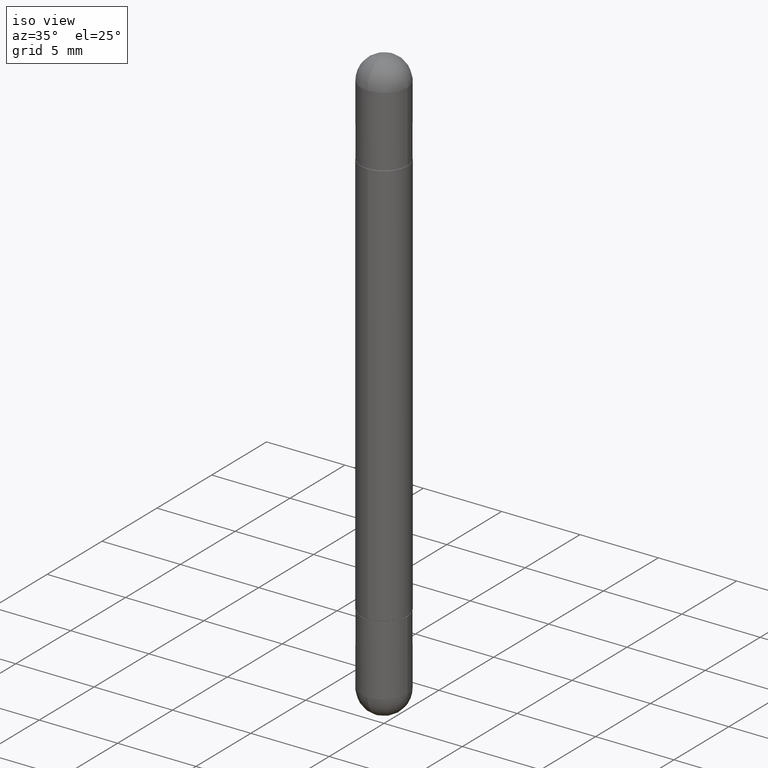
[diagram: clean part render]
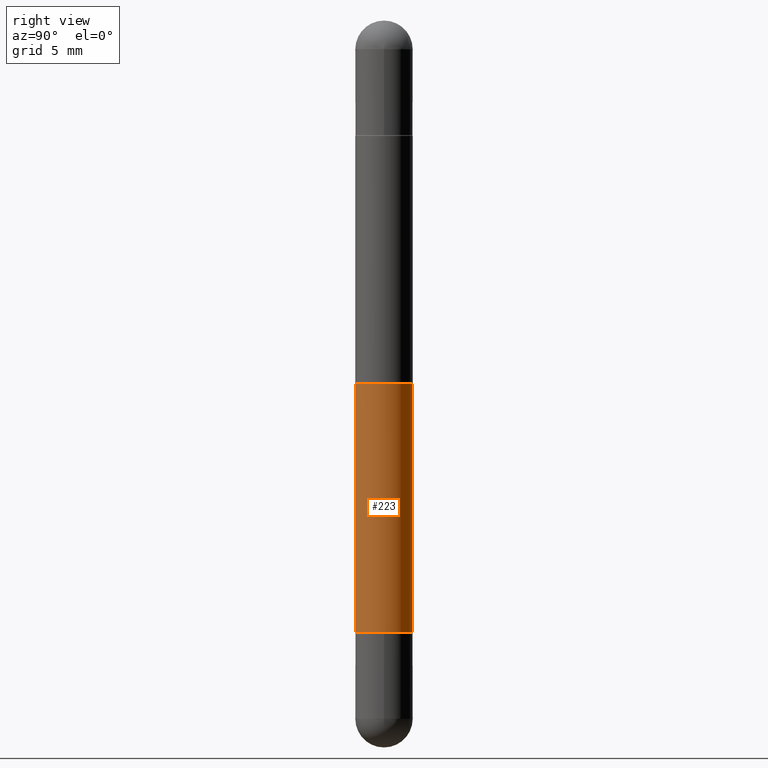
[diagram: tour spotlight — one face highlighted and labeled with its STEP entity id]
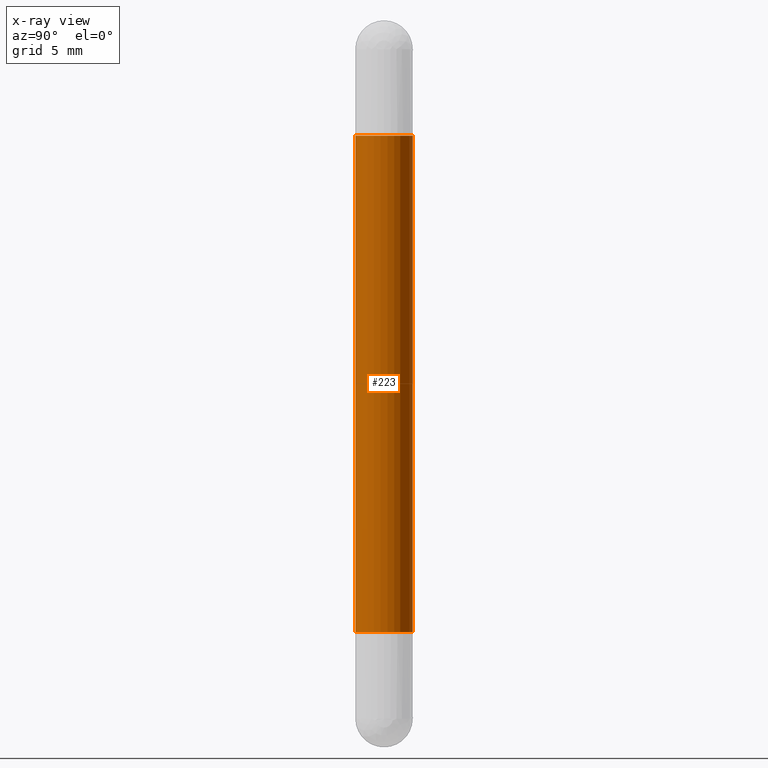
[diagram: x-ray of the same camera — body ghosted, this tour face saturated]
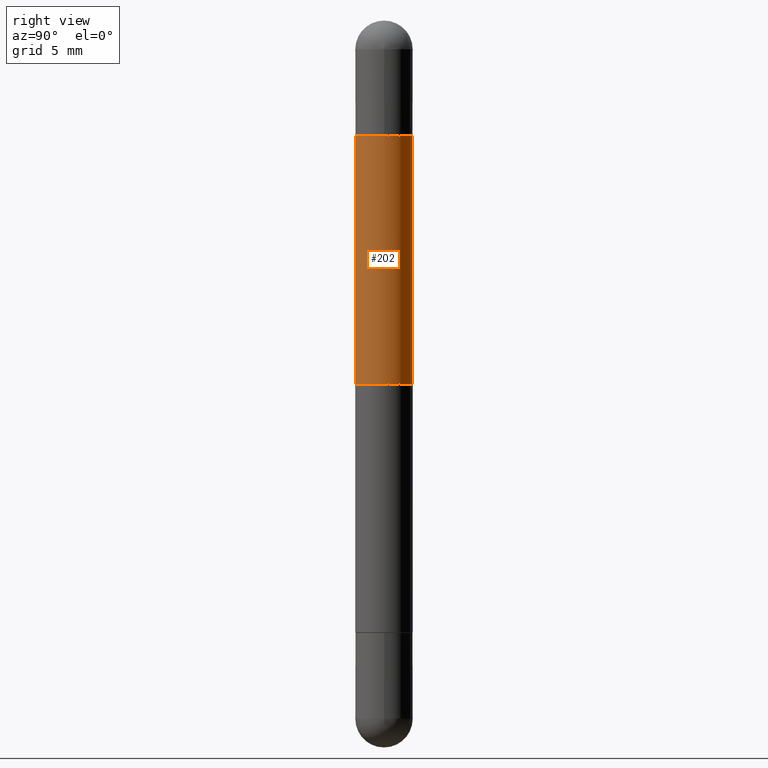
[diagram: tour spotlight — one face highlighted and labeled with its STEP entity id]
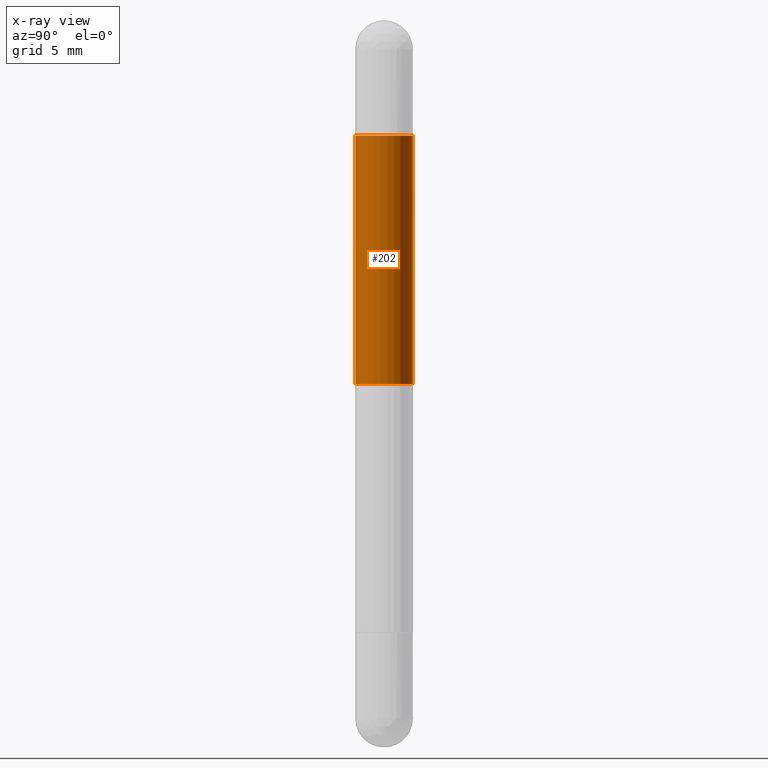
[diagram: x-ray of the same camera — body ghosted, this tour face saturated]
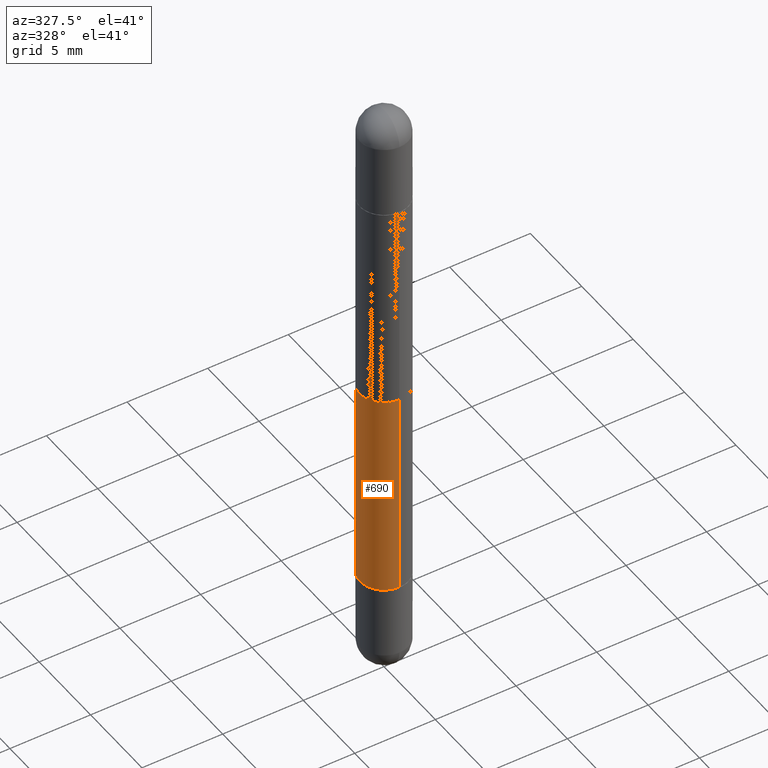
[diagram: tour spotlight — one face highlighted and labeled with its STEP entity id]
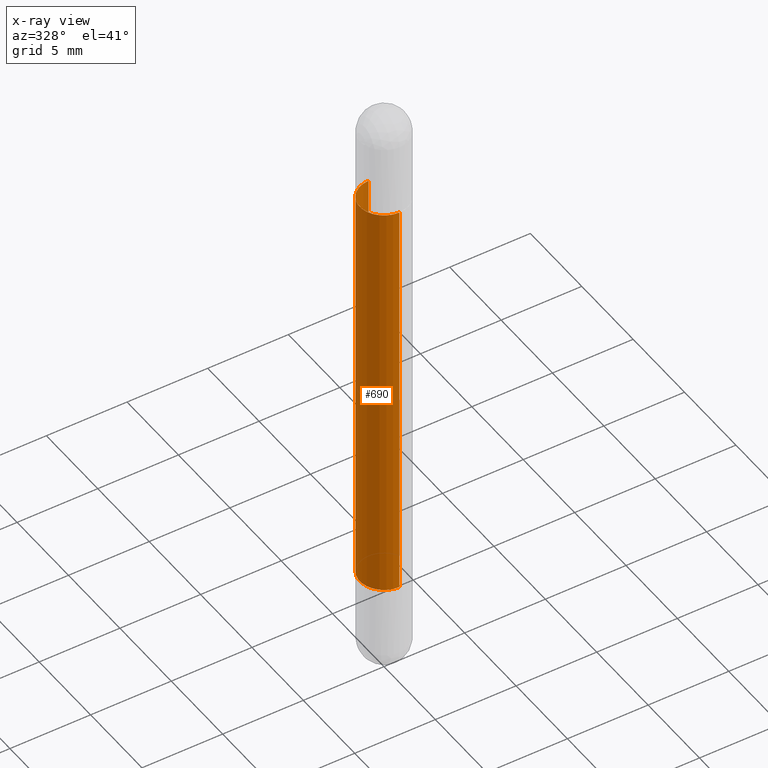
[diagram: x-ray of the same camera — body ghosted, this tour face saturated]
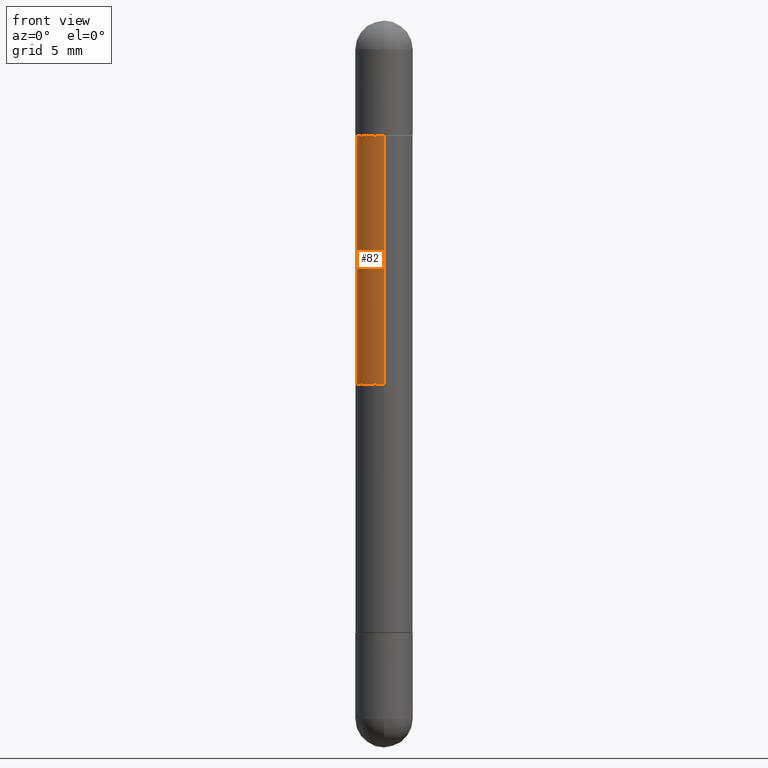
[diagram: tour spotlight — one face highlighted and labeled with its STEP entity id]
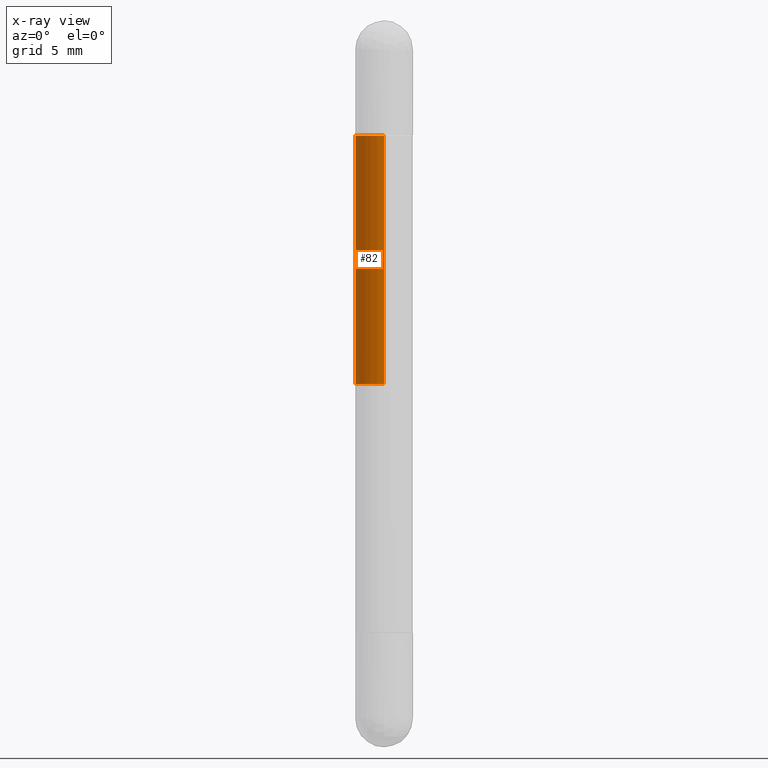
[diagram: x-ray of the same camera — body ghosted, this tour face saturated]
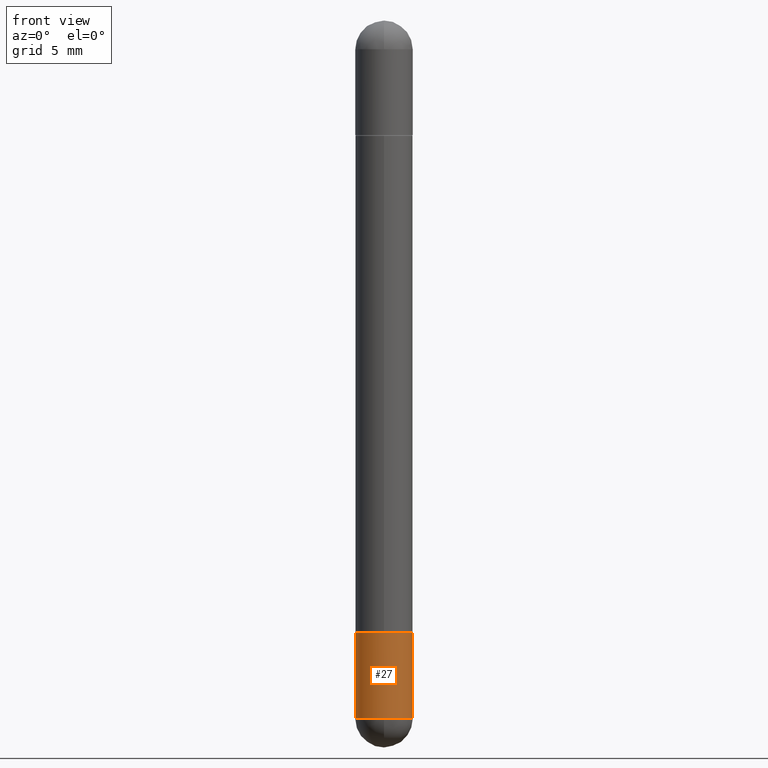
[diagram: tour spotlight — one face highlighted and labeled with its STEP entity id]
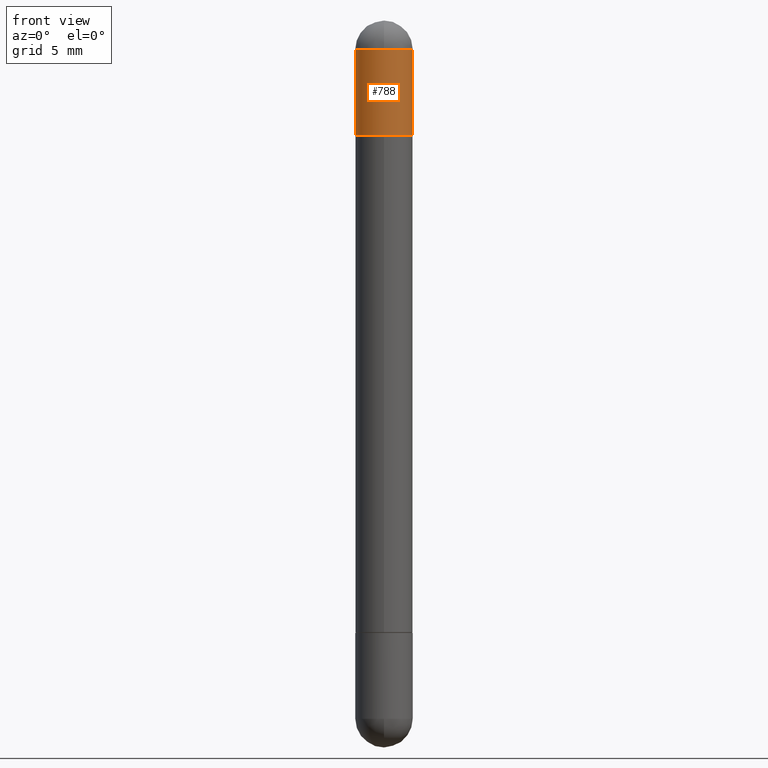
[diagram: tour spotlight — one face highlighted and labeled with its STEP entity id]
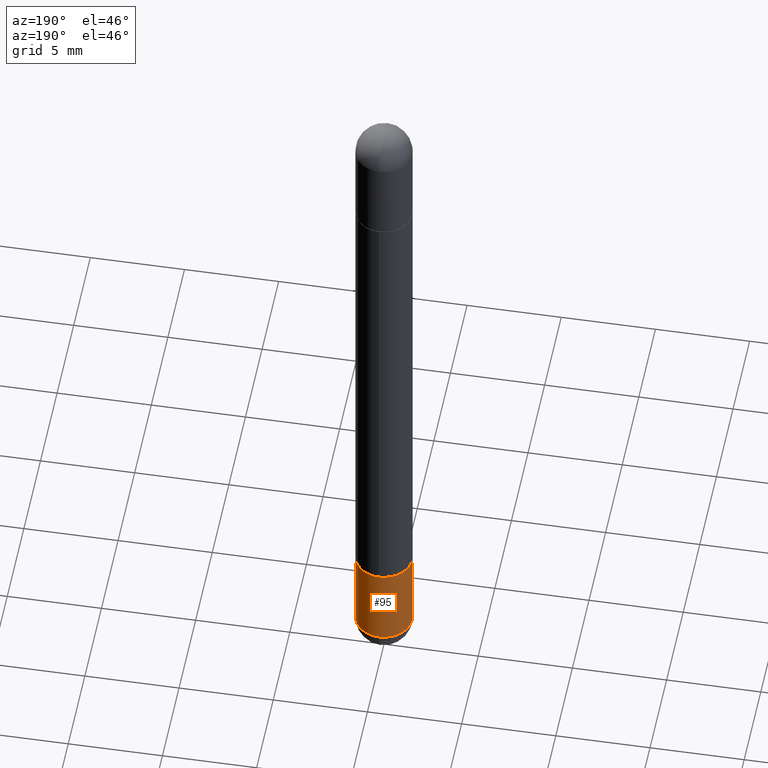
[diagram: tour spotlight — one face highlighted and labeled with its STEP entity id]
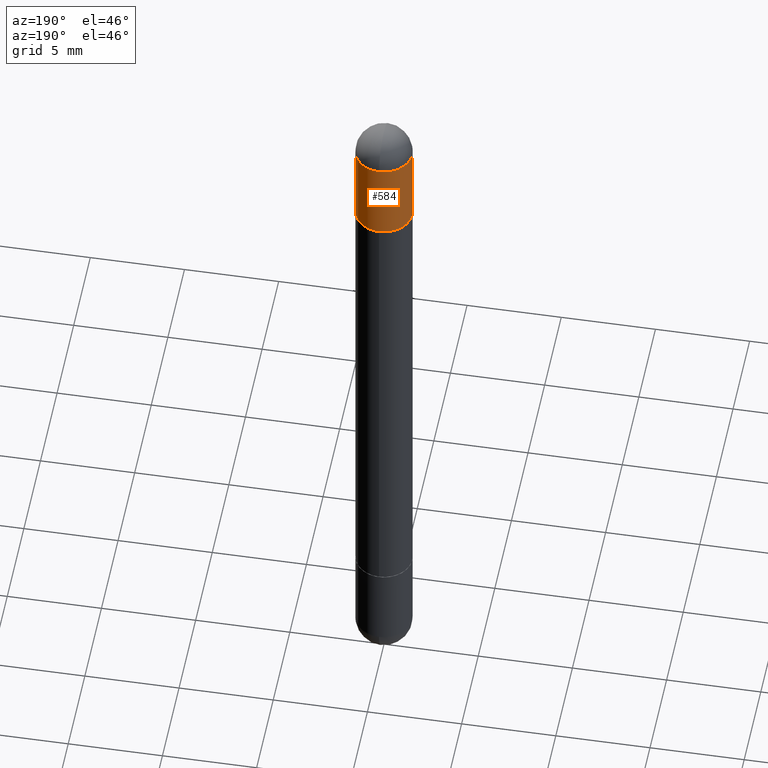
[diagram: tour spotlight — one face highlighted and labeled with its STEP entity id]
A machine part: a face-by-face anatomy tour. The part has 29 B-rep faces; the first image is the clean iso view, then the 8 largest visible faces are spotlighted one at a time (largest first), each with its STEP entity span.

Face 1 — right view, entity #223. An x-ray twin of the same camera follows (body ghosted, this face saturated) — the face is partly hidden behind the body. In plain terms, the highlighted cylindrical surface (edge-blend (fillet) strip) has radius 1.4999 mm, axis along (-0, 0, -1).
Definition (entity closure, byte-faithful):
#17 = CARTESIAN_POINT ( 'NONE',  ( 3.088015164772485743E-29, -4.381943779588710480E-15, -1.258900000000000130 ) ) ;
#22 = CARTESIAN_POINT ( 'NONE',  ( 4.051124067684094106E-16, 0.05905000000000007465, -1.496099999999999985 ) ) ;
#26 = CYLINDRICAL_SURFACE ( 'NONE', #769, 0.05905000000000007465 ) ;
#50 = VERTEX_POINT ( 'NONE', #796 ) ;
#84 = VECTOR ( 'NONE', #383, 39.37007874015748143 ) ;
#89 = DIRECTION ( 'NONE',  ( -2.452947148123349933E-29, 3.480771927546834282E-15, -1.000000000000000000 ) ) ;
#99 = ORIENTED_EDGE ( 'NONE', *, *, #364, .F. ) ;
#121 = ORIENTED_EDGE ( 'NONE', *, *, #171, .T. ) ;
#132 = AXIS2_PLACEMENT_3D ( 'NONE', #269, #375, #441 ) ;
#161 = VERTEX_POINT ( 'NONE', #701 ) ;
#171 = EDGE_CURVE ( 'NONE', #50, #746, #349, .T. ) ;
#210 = CARTESIAN_POINT ( 'NONE',  ( -4.123439461173745257E-16, -0.05905000000000007465, -1.496100000000000430 ) ) ;
#223 = ADVANCED_FACE ( 'NONE', ( #717 ), #26, .T. ) ;
#225 = CARTESIAN_POINT ( 'NONE',  ( 0.000000000000000000, 0.000000000000000000, -1.496100000000000207 ) ) ;
#269 = CARTESIAN_POINT ( 'NONE',  ( 3.088015164772485743E-29, -4.381943779588710480E-15, -0.2372000000000001330 ) ) ;
#298 = EDGE_CURVE ( 'NONE', #161, #50, #622, .T. ) ;
#349 = CIRCLE ( 'NONE', #812, 0.05905000000000013710 ) ;
#362 = EDGE_LOOP ( 'NONE', ( #480, #99, #373, #121 ) ) ;
#364 = EDGE_CURVE ( 'NONE', #161, #535, #620, .T. ) ;
#373 = ORIENTED_EDGE ( 'NONE', *, *, #298, .T. ) ;
#375 = DIRECTION ( 'NONE',  ( 2.452947148123349933E-29, -3.480771927546834282E-15, 1.000000000000000000 ) ) ;
#383 = DIRECTION ( 'NONE',  ( -2.452947148123350213E-29, 3.480771927546833888E-15, -1.000000000000000000 ) ) ;
#424 = CARTESIAN_POINT ( 'NONE',  ( 4.051124067684407185E-16, 0.05904999999999575866, -0.2371999999999999387 ) ) ;
#441 = DIRECTION ( 'NONE',  ( -6.982962677686265922E-15, -1.000000000000000000, -3.469747663417769114E-15 ) ) ;
#455 = LINE ( 'NONE', #22, #508 ) ;
#457 = CARTESIAN_POINT ( 'NONE',  ( 4.051124067684279488E-16, 0.05904999999999575866, -1.258900000000000352 ) ) ;
#469 = DIRECTION ( 'NONE',  ( -6.982962677686265922E-15, -1.000000000000000000, 4.626330217890359081E-15 ) ) ;
#480 = ORIENTED_EDGE ( 'NONE', *, *, #506, .F. ) ;
#506 = EDGE_CURVE ( 'NONE', #535, #746, #455, .T. ) ;
#508 = VECTOR ( 'NONE', #718, 39.37007874015748143 ) ;
#523 = DIRECTION ( 'NONE',  ( -2.452947148123349933E-29, 3.480771927546834282E-15, 1.000000000000000000 ) ) ;
#535 = VERTEX_POINT ( 'NONE', #424 ) ;
#594 = DIRECTION ( 'NONE',  ( -6.982962677686265922E-15, -1.000000000000000000, -4.626330217890363814E-15 ) ) ;
#620 = CIRCLE ( 'NONE', #132, 0.05905000000000013710 ) ;
#622 = LINE ( 'NONE', #210, #84 ) ;
#701 = CARTESIAN_POINT ( 'NONE',  ( -4.123439461173440560E-16, -0.05905000000000451554, -0.2372000000000003272 ) ) ;
#717 = FACE_OUTER_BOUND ( 'NONE', #362, .T. ) ;
#718 = DIRECTION ( 'NONE',  ( -2.452947148123350213E-29, 3.480771927546833888E-15, -1.000000000000000000 ) ) ;
#746 = VERTEX_POINT ( 'NONE', #457 ) ;
#769 = AXIS2_PLACEMENT_3D ( 'NONE', #225, #89, #594 ) ;
#796 = CARTESIAN_POINT ( 'NONE',  ( -4.123439461173440560E-16, -0.05905000000000451554, -1.258899999999999686 ) ) ;
#812 = AXIS2_PLACEMENT_3D ( 'NONE', #17, #523, #469 ) ;

Face 2 — right view, entity #202. An x-ray twin of the same camera follows (body ghosted, this face saturated) — the face is partly hidden behind the body. In plain terms, the highlighted cylindrical surface (edge-blend (fillet) strip) has radius 1.4999 mm, axis along (-0, 0, -1).
Definition (entity closure, byte-faithful):
#18 = CARTESIAN_POINT ( 'NONE',  ( 3.088015164772485743E-29, -4.381943779588710480E-15, -0.2372000000000001330 ) ) ;
#21 = LINE ( 'NONE', #780, #403 ) ;
#59 = AXIS2_PLACEMENT_3D ( 'NONE', #158, #670, #170 ) ;
#106 = CARTESIAN_POINT ( 'NONE',  ( 4.051124067684401762E-16, 0.05904999999999747257, -0.7480500000000001037 ) ) ;
#108 = VERTEX_POINT ( 'NONE', #201 ) ;
#112 = VERTEX_POINT ( 'NONE', #628 ) ;
#158 = CARTESIAN_POINT ( 'NONE',  ( 0.000000000000000000, 0.000000000000000000, -1.496100000000000207 ) ) ;
#170 = DIRECTION ( 'NONE',  ( -6.982962677686265922E-15, -1.000000000000000000, -4.626330217890363814E-15 ) ) ;
#172 = VERTEX_POINT ( 'NONE', #665 ) ;
#184 = DIRECTION ( 'NONE',  ( -1.000000000000000000, 0.000000000000000000, 0.000000000000000000 ) ) ;
#192 = DIRECTION ( 'NONE',  ( -0.000000000000000000, -0.000000000000000000, -1.000000000000000000 ) ) ;
#201 = CARTESIAN_POINT ( 'NONE',  ( 4.051124067684407185E-16, 0.05904999999999575866, -0.2371999999999999387 ) ) ;
#202 = ADVANCED_FACE ( 'NONE', ( #471 ), #463, .T. ) ;
#230 = DIRECTION ( 'NONE',  ( 2.452947148123349933E-29, -3.480771927546834282E-15, 1.000000000000000000 ) ) ;
#246 = ORIENTED_EDGE ( 'NONE', *, *, #655, .F. ) ;
#252 = ORIENTED_EDGE ( 'NONE', *, *, #597, .F. ) ;
#281 = DIRECTION ( 'NONE',  ( -2.452947148123350213E-29, 3.480771927546833888E-15, -1.000000000000000000 ) ) ;
#282 = EDGE_CURVE ( 'NONE', #108, #401, #21, .T. ) ;
#303 = AXIS2_PLACEMENT_3D ( 'NONE', #18, #230, #663 ) ;
#315 = ORIENTED_EDGE ( 'NONE', *, *, #282, .F. ) ;
#396 = LINE ( 'NONE', #656, #659 ) ;
#400 = DIRECTION ( 'NONE',  ( -2.452947148123350213E-29, 3.480771927546833888E-15, -1.000000000000000000 ) ) ;
#401 = VERTEX_POINT ( 'NONE', #106 ) ;
#403 = VECTOR ( 'NONE', #281, 39.37007874015748143 ) ;
#429 = AXIS2_PLACEMENT_3D ( 'NONE', #554, #192, #184 ) ;
#463 = CYLINDRICAL_SURFACE ( 'NONE', #59, 0.05905000000000007465 ) ;
#471 = FACE_OUTER_BOUND ( 'NONE', #491, .T. ) ;
#491 = EDGE_LOOP ( 'NONE', ( #315, #252, #592, #246 ) ) ;
#514 = EDGE_CURVE ( 'NONE', #172, #112, #396, .T. ) ;
#554 = CARTESIAN_POINT ( 'NONE',  ( 1.834927114153672124E-29, -2.603791440401409693E-15, -0.7480500000000001037 ) ) ;
#592 = ORIENTED_EDGE ( 'NONE', *, *, #514, .T. ) ;
#597 = EDGE_CURVE ( 'NONE', #172, #108, #652, .T. ) ;
#628 = CARTESIAN_POINT ( 'NONE',  ( -4.123439461173499231E-16, -0.05905000000000267674, -0.7480500000000001037 ) ) ;
#652 = CIRCLE ( 'NONE', #303, 0.05905000000000013710 ) ;
#655 = EDGE_CURVE ( 'NONE', #401, #112, #679, .T. ) ;
#656 = CARTESIAN_POINT ( 'NONE',  ( -4.123439461173745257E-16, -0.05905000000000007465, -1.496100000000000430 ) ) ;
#659 = VECTOR ( 'NONE', #400, 39.37007874015748143 ) ;
#663 = DIRECTION ( 'NONE',  ( -6.982962677686265922E-15, -1.000000000000000000, -3.469747663417769114E-15 ) ) ;
#665 = CARTESIAN_POINT ( 'NONE',  ( -4.123439461173440560E-16, -0.05905000000000451554, -0.2372000000000003272 ) ) ;
#670 = DIRECTION ( 'NONE',  ( -2.452947148123349933E-29, 3.480771927546834282E-15, -1.000000000000000000 ) ) ;
#679 = CIRCLE ( 'NONE', #429, 0.05905000000000007465 ) ;
#780 = CARTESIAN_POINT ( 'NONE',  ( 4.051124067684094106E-16, 0.05905000000000007465, -1.496099999999999985 ) ) ;

Face 3 — auxiliary view, entity #690. An x-ray twin of the same camera follows (body ghosted, this face saturated) — the face is partly hidden behind the body. In plain terms, the highlighted cylindrical surface (edge-blend (fillet) strip) has radius 1.4999 mm, axis along (-0, 0, -1).
Definition (entity closure, byte-faithful):
#2 = CIRCLE ( 'NONE', #414, 0.05905000000000013710 ) ;
#22 = CARTESIAN_POINT ( 'NONE',  ( 4.051124067684094106E-16, 0.05905000000000007465, -1.496099999999999985 ) ) ;
#50 = VERTEX_POINT ( 'NONE', #796 ) ;
#84 = VECTOR ( 'NONE', #383, 39.37007874015748143 ) ;
#96 = ORIENTED_EDGE ( 'NONE', *, *, #506, .T. ) ;
#125 = DIRECTION ( 'NONE',  ( -2.452947148123349933E-29, 3.480771927546834282E-15, 1.000000000000000000 ) ) ;
#126 = EDGE_CURVE ( 'NONE', #746, #50, #2, .T. ) ;
#161 = VERTEX_POINT ( 'NONE', #701 ) ;
#203 = DIRECTION ( 'NONE',  ( -6.982962677686265922E-15, -1.000000000000000000, -3.469747663417769114E-15 ) ) ;
#210 = CARTESIAN_POINT ( 'NONE',  ( -4.123439461173745257E-16, -0.05905000000000007465, -1.496100000000000430 ) ) ;
#263 = AXIS2_PLACEMENT_3D ( 'NONE', #767, #633, #643 ) ;
#298 = EDGE_CURVE ( 'NONE', #161, #50, #622, .T. ) ;
#328 = ORIENTED_EDGE ( 'NONE', *, *, #126, .T. ) ;
#368 = AXIS2_PLACEMENT_3D ( 'NONE', #552, #758, #203 ) ;
#383 = DIRECTION ( 'NONE',  ( -2.452947148123350213E-29, 3.480771927546833888E-15, -1.000000000000000000 ) ) ;
#414 = AXIS2_PLACEMENT_3D ( 'NONE', #433, #125, #768 ) ;
#424 = CARTESIAN_POINT ( 'NONE',  ( 4.051124067684407185E-16, 0.05904999999999575866, -0.2371999999999999387 ) ) ;
#431 = FACE_OUTER_BOUND ( 'NONE', #678, .T. ) ;
#433 = CARTESIAN_POINT ( 'NONE',  ( 3.088015164772485743E-29, -4.381943779588710480E-15, -1.258900000000000130 ) ) ;
#455 = LINE ( 'NONE', #22, #508 ) ;
#457 = CARTESIAN_POINT ( 'NONE',  ( 4.051124067684279488E-16, 0.05904999999999575866, -1.258900000000000352 ) ) ;
#461 = EDGE_CURVE ( 'NONE', #535, #161, #519, .T. ) ;
#506 = EDGE_CURVE ( 'NONE', #535, #746, #455, .T. ) ;
#508 = VECTOR ( 'NONE', #718, 39.37007874015748143 ) ;
#519 = CIRCLE ( 'NONE', #368, 0.05905000000000013710 ) ;
#535 = VERTEX_POINT ( 'NONE', #424 ) ;
#552 = CARTESIAN_POINT ( 'NONE',  ( 3.088015164772485743E-29, -4.381943779588710480E-15, -0.2372000000000001330 ) ) ;
#616 = ORIENTED_EDGE ( 'NONE', *, *, #461, .F. ) ;
#622 = LINE ( 'NONE', #210, #84 ) ;
#633 = DIRECTION ( 'NONE',  ( -2.452947148123349933E-29, 3.480771927546834282E-15, -1.000000000000000000 ) ) ;
#643 = DIRECTION ( 'NONE',  ( -6.982962677686265922E-15, -1.000000000000000000, -4.626330217890363814E-15 ) ) ;
#678 = EDGE_LOOP ( 'NONE', ( #616, #96, #328, #760 ) ) ;
#690 = ADVANCED_FACE ( 'NONE', ( #431 ), #817, .T. ) ;
#701 = CARTESIAN_POINT ( 'NONE',  ( -4.123439461173440560E-16, -0.05905000000000451554, -0.2372000000000003272 ) ) ;
#718 = DIRECTION ( 'NONE',  ( -2.452947148123350213E-29, 3.480771927546833888E-15, -1.000000000000000000 ) ) ;
#746 = VERTEX_POINT ( 'NONE', #457 ) ;
#758 = DIRECTION ( 'NONE',  ( 2.452947148123349933E-29, -3.480771927546834282E-15, 1.000000000000000000 ) ) ;
#760 = ORIENTED_EDGE ( 'NONE', *, *, #298, .F. ) ;
#767 = CARTESIAN_POINT ( 'NONE',  ( 0.000000000000000000, 0.000000000000000000, -1.496100000000000207 ) ) ;
#768 = DIRECTION ( 'NONE',  ( -6.982962677686265922E-15, -1.000000000000000000, 4.626330217890359081E-15 ) ) ;
#796 = CARTESIAN_POINT ( 'NONE',  ( -4.123439461173440560E-16, -0.05905000000000451554, -1.258899999999999686 ) ) ;
#817 = CYLINDRICAL_SURFACE ( 'NONE', #263, 0.05905000000000007465 ) ;

Face 4 — front view, entity #82. An x-ray twin of the same camera follows (body ghosted, this face saturated) — the face is partly hidden behind the body. In plain terms, the highlighted cylindrical surface (edge-blend (fillet) strip) has radius 1.4999 mm, axis along (-0, 0, -1).
Definition (entity closure, byte-faithful):
#4 = AXIS2_PLACEMENT_3D ( 'NONE', #485, #425, #190 ) ;
#21 = LINE ( 'NONE', #780, #403 ) ;
#34 = ORIENTED_EDGE ( 'NONE', *, *, #662, .F. ) ;
#82 = ADVANCED_FACE ( 'NONE', ( #612 ), #685, .T. ) ;
#106 = CARTESIAN_POINT ( 'NONE',  ( 4.051124067684401762E-16, 0.05904999999999747257, -0.7480500000000001037 ) ) ;
#108 = VERTEX_POINT ( 'NONE', #201 ) ;
#111 = CARTESIAN_POINT ( 'NONE',  ( 0.000000000000000000, 0.000000000000000000, -1.496100000000000207 ) ) ;
#112 = VERTEX_POINT ( 'NONE', #628 ) ;
#172 = VERTEX_POINT ( 'NONE', #665 ) ;
#187 = ORIENTED_EDGE ( 'NONE', *, *, #282, .T. ) ;
#189 = DIRECTION ( 'NONE',  ( -2.452947148123349933E-29, 3.480771927546834282E-15, -1.000000000000000000 ) ) ;
#190 = DIRECTION ( 'NONE',  ( -1.000000000000000000, 0.000000000000000000, 0.000000000000000000 ) ) ;
#194 = CARTESIAN_POINT ( 'NONE',  ( 3.088015164772485743E-29, -4.381943779588710480E-15, -0.2372000000000001330 ) ) ;
#201 = CARTESIAN_POINT ( 'NONE',  ( 4.051124067684407185E-16, 0.05904999999999575866, -0.2371999999999999387 ) ) ;
#279 = ORIENTED_EDGE ( 'NONE', *, *, #402, .F. ) ;
#281 = DIRECTION ( 'NONE',  ( -2.452947148123350213E-29, 3.480771927546833888E-15, -1.000000000000000000 ) ) ;
#282 = EDGE_CURVE ( 'NONE', #108, #401, #21, .T. ) ;
#296 = ORIENTED_EDGE ( 'NONE', *, *, #514, .F. ) ;
#355 = DIRECTION ( 'NONE',  ( -6.982962677686265922E-15, -1.000000000000000000, -3.469747663417769114E-15 ) ) ;
#379 = AXIS2_PLACEMENT_3D ( 'NONE', #194, #486, #355 ) ;
#396 = LINE ( 'NONE', #656, #659 ) ;
#400 = DIRECTION ( 'NONE',  ( -2.452947148123350213E-29, 3.480771927546833888E-15, -1.000000000000000000 ) ) ;
#401 = VERTEX_POINT ( 'NONE', #106 ) ;
#402 = EDGE_CURVE ( 'NONE', #108, #172, #564, .T. ) ;
#403 = VECTOR ( 'NONE', #281, 39.37007874015748143 ) ;
#425 = DIRECTION ( 'NONE',  ( -0.000000000000000000, -0.000000000000000000, -1.000000000000000000 ) ) ;
#485 = CARTESIAN_POINT ( 'NONE',  ( 1.834927114153672124E-29, -2.603791440401409693E-15, -0.7480500000000001037 ) ) ;
#486 = DIRECTION ( 'NONE',  ( 2.452947148123349933E-29, -3.480771927546834282E-15, 1.000000000000000000 ) ) ;
#514 = EDGE_CURVE ( 'NONE', #172, #112, #396, .T. ) ;
#564 = CIRCLE ( 'NONE', #379, 0.05905000000000013710 ) ;
#612 = FACE_OUTER_BOUND ( 'NONE', #765, .T. ) ;
#621 = CIRCLE ( 'NONE', #4, 0.05905000000000007465 ) ;
#628 = CARTESIAN_POINT ( 'NONE',  ( -4.123439461173499231E-16, -0.05905000000000267674, -0.7480500000000001037 ) ) ;
#656 = CARTESIAN_POINT ( 'NONE',  ( -4.123439461173745257E-16, -0.05905000000000007465, -1.496100000000000430 ) ) ;
#659 = VECTOR ( 'NONE', #400, 39.37007874015748143 ) ;
#662 = EDGE_CURVE ( 'NONE', #112, #401, #621, .T. ) ;
#665 = CARTESIAN_POINT ( 'NONE',  ( -4.123439461173440560E-16, -0.05905000000000451554, -0.2372000000000003272 ) ) ;
#685 = CYLINDRICAL_SURFACE ( 'NONE', #781, 0.05905000000000007465 ) ;
#688 = DIRECTION ( 'NONE',  ( -6.982962677686265922E-15, -1.000000000000000000, -4.626330217890363814E-15 ) ) ;
#765 = EDGE_LOOP ( 'NONE', ( #279, #187, #34, #296 ) ) ;
#780 = CARTESIAN_POINT ( 'NONE',  ( 4.051124067684094106E-16, 0.05905000000000007465, -1.496099999999999985 ) ) ;
#781 = AXIS2_PLACEMENT_3D ( 'NONE', #111, #189, #688 ) ;

Face 5 — front view, entity #27. In plain terms, the highlighted cylindrical surface (edge-blend (fillet) strip) has radius 1.4999 mm, axis along (-0, 0, 1).
Definition (entity closure, byte-faithful):
#13 = CARTESIAN_POINT ( 'NONE',  ( -0.05905000000000001914, -4.288599812930171320E-15, -1.259899999999999798 ) ) ;
#27 = ADVANCED_FACE ( 'NONE', ( #75 ), #653, .T. ) ;
#37 = CARTESIAN_POINT ( 'NONE',  ( -0.05905000000000001914, -4.288599812930171320E-15, -1.437049999999999939 ) ) ;
#69 = CARTESIAN_POINT ( 'NONE',  ( 3.081046148912652946E-29, -4.398917338808479031E-15, -1.259899999999999798 ) ) ;
#75 = FACE_OUTER_BOUND ( 'NONE', #490, .T. ) ;
#83 = AXIS2_PLACEMENT_3D ( 'NONE', #566, #397, #716 ) ;
#115 = CARTESIAN_POINT ( 'NONE',  ( -0.05905000000000001914, 4.195754854663392958E-16, -2.904631170795522943E-30 ) ) ;
#118 = CIRCLE ( 'NONE', #199, 0.05905000000000001914 ) ;
#142 = DIRECTION ( 'NONE',  ( -2.445468806185136597E-29, 3.491481338843145583E-15, 1.000000000000000000 ) ) ;
#167 = DIRECTION ( 'NONE',  ( 1.000000000000000000, -6.982962677686270655E-15, 0.000000000000000000 ) ) ;
#199 = AXIS2_PLACEMENT_3D ( 'NONE', #524, #271, #167 ) ;
#232 = VECTOR ( 'NONE', #325, 39.37007874015748143 ) ;
#253 = VECTOR ( 'NONE', #561, 39.37007874015748143 ) ;
#257 = LINE ( 'NONE', #577, #232 ) ;
#271 = DIRECTION ( 'NONE',  ( -2.445468806185136597E-29, 3.491481338843145583E-15, 1.000000000000000000 ) ) ;
#286 = EDGE_CURVE ( 'NONE', #802, #360, #702, .T. ) ;
#325 = DIRECTION ( 'NONE',  ( -2.445468806185136877E-29, 3.491481338843145188E-15, 1.000000000000000000 ) ) ;
#357 = ORIENTED_EDGE ( 'NONE', *, *, #286, .T. ) ;
#360 = VERTEX_POINT ( 'NONE', #598 ) ;
#381 = EDGE_CURVE ( 'NONE', #753, #609, #575, .T. ) ;
#389 = EDGE_CURVE ( 'NONE', #562, #753, #540, .T. ) ;
#390 = DIRECTION ( 'NONE',  ( 1.000000000000000000, -6.982962677686270655E-15, 0.000000000000000000 ) ) ;
#397 = DIRECTION ( 'NONE',  ( -2.445468806185136597E-29, 3.491481338843145583E-15, 1.000000000000000000 ) ) ;
#422 = DIRECTION ( 'NONE',  ( 1.000000000000000000, -6.982962677686270655E-15, 0.000000000000000000 ) ) ;
#428 = AXIS2_PLACEMENT_3D ( 'NONE', #69, #142, #390 ) ;
#490 = EDGE_LOOP ( 'NONE', ( #804, #740, #357, #593, #695 ) ) ;
#495 = AXIS2_PLACEMENT_3D ( 'NONE', #525, #550, #422 ) ;
#498 = EDGE_CURVE ( 'NONE', #562, #802, #118, .T. ) ;
#524 = CARTESIAN_POINT ( 'NONE',  ( 3.514260947928350449E-29, -5.017433257984542594E-15, -1.437049999999999939 ) ) ;
#525 = CARTESIAN_POINT ( 'NONE',  ( 3.514260947928350449E-29, -5.017433257984542594E-15, -1.437049999999999939 ) ) ;
#540 = LINE ( 'NONE', #115, #253 ) ;
#550 = DIRECTION ( 'NONE',  ( -2.445468806185136597E-29, 3.491481338843145583E-15, 1.000000000000000000 ) ) ;
#561 = DIRECTION ( 'NONE',  ( -2.445468806185136877E-29, 3.491481338843145188E-15, 1.000000000000000000 ) ) ;
#562 = VERTEX_POINT ( 'NONE', #37 ) ;
#566 = CARTESIAN_POINT ( 'NONE',  ( 0.000000000000000000, 0.000000000000000000, 0.000000000000000000 ) ) ;
#575 = CIRCLE ( 'NONE', #428, 0.05905000000000001914 ) ;
#577 = CARTESIAN_POINT ( 'NONE',  ( 0.05905000000000001914, -4.123439461173741806E-16, 2.879382386107500921E-30 ) ) ;
#582 = CARTESIAN_POINT ( 'NONE',  ( -4.195754854663065087E-16, -0.05905000000000539678, -1.437049999999999716 ) ) ;
#593 = ORIENTED_EDGE ( 'NONE', *, *, #682, .T. ) ;
#598 = CARTESIAN_POINT ( 'NONE',  ( 0.05905000000000001914, -5.120519244513884944E-15, -1.437049999999999939 ) ) ;
#609 = VERTEX_POINT ( 'NONE', #668 ) ;
#653 = CYLINDRICAL_SURFACE ( 'NONE', #83, 0.05905000000000001914 ) ;
#668 = CARTESIAN_POINT ( 'NONE',  ( 0.05905000000000001914, -4.811261284925853162E-15, -1.259899999999999798 ) ) ;
#682 = EDGE_CURVE ( 'NONE', #360, #609, #257, .T. ) ;
#695 = ORIENTED_EDGE ( 'NONE', *, *, #381, .F. ) ;
#702 = CIRCLE ( 'NONE', #495, 0.05905000000000001914 ) ;
#716 = DIRECTION ( 'NONE',  ( 1.000000000000000000, -6.982962677686266711E-15, 4.876176775795935793E-29 ) ) ;
#740 = ORIENTED_EDGE ( 'NONE', *, *, #498, .T. ) ;
#753 = VERTEX_POINT ( 'NONE', #13 ) ;
#802 = VERTEX_POINT ( 'NONE', #582 ) ;
#804 = ORIENTED_EDGE ( 'NONE', *, *, #389, .F. ) ;

Face 6 — front view, entity #788. In plain terms, the highlighted cylindrical surface (edge-blend (fillet) strip) has radius 1.4999 mm, axis along (-0, 0, -1).
Definition (entity closure, byte-faithful):
#67 = CARTESIAN_POINT ( 'NONE',  ( 0.05905000000000001914, -5.120519244513884944E-15, -0.05905000000000028976 ) ) ;
#85 = AXIS2_PLACEMENT_3D ( 'NONE', #418, #109, #789 ) ;
#92 = VERTEX_POINT ( 'NONE', #67 ) ;
#94 = EDGE_CURVE ( 'NONE', #356, #313, #329, .T. ) ;
#97 = CYLINDRICAL_SURFACE ( 'NONE', #85, 0.05905000000000001914 ) ;
#109 = DIRECTION ( 'NONE',  ( -2.445468806185136597E-29, 3.491481338843145583E-15, -1.000000000000000000 ) ) ;
#117 = AXIS2_PLACEMENT_3D ( 'NONE', #447, #646, #452 ) ;
#155 = DIRECTION ( 'NONE',  ( -2.445468806185136877E-29, 3.491481338843145188E-15, -1.000000000000000000 ) ) ;
#181 = VECTOR ( 'NONE', #610, 39.37007874015748143 ) ;
#182 = FACE_OUTER_BOUND ( 'NONE', #618, .T. ) ;
#213 = AXIS2_PLACEMENT_3D ( 'NONE', #754, #254, #775 ) ;
#221 = CARTESIAN_POINT ( 'NONE',  ( -0.05905000000000001914, -4.303062891628101254E-15, -0.2362000000000003264 ) ) ;
#237 = EDGE_CURVE ( 'NONE', #313, #92, #367, .T. ) ;
#254 = DIRECTION ( 'NONE',  ( 2.445468806185136597E-29, -3.491481338843145583E-15, 1.000000000000000000 ) ) ;
#261 = CIRCLE ( 'NONE', #117, 0.05905000000000001914 ) ;
#291 = DIRECTION ( 'NONE',  ( 2.445468806185136597E-29, -3.491481338843145583E-15, 1.000000000000000000 ) ) ;
#293 = VECTOR ( 'NONE', #155, 39.37007874015748143 ) ;
#305 = ORIENTED_EDGE ( 'NONE', *, *, #522, .T. ) ;
#306 = CARTESIAN_POINT ( 'NONE',  ( 0.05905000000000001914, -4.811261284925853162E-15, -0.2362000000000003264 ) ) ;
#313 = VERTEX_POINT ( 'NONE', #387 ) ;
#329 = CIRCLE ( 'NONE', #213, 0.05905000000000001914 ) ;
#356 = VERTEX_POINT ( 'NONE', #664 ) ;
#359 = ORIENTED_EDGE ( 'NONE', *, *, #94, .F. ) ;
#367 = CIRCLE ( 'NONE', #466, 0.05905000000000001914 ) ;
#378 = EDGE_CURVE ( 'NONE', #504, #436, #261, .T. ) ;
#387 = CARTESIAN_POINT ( 'NONE',  ( -4.051124067683763770E-16, -0.05905000000000539678, -0.05905000000000049099 ) ) ;
#411 = ORIENTED_EDGE ( 'NONE', *, *, #378, .T. ) ;
#418 = CARTESIAN_POINT ( 'NONE',  ( 0.000000000000000000, 0.000000000000000000, -1.496100000000000207 ) ) ;
#435 = ORIENTED_EDGE ( 'NONE', *, *, #706, .F. ) ;
#436 = VERTEX_POINT ( 'NONE', #306 ) ;
#437 = ORIENTED_EDGE ( 'NONE', *, *, #237, .F. ) ;
#447 = CARTESIAN_POINT ( 'NONE',  ( 3.081046148912652946E-29, -4.398917338808479031E-15, -0.2362000000000003264 ) ) ;
#452 = DIRECTION ( 'NONE',  ( 1.000000000000000000, -6.982962677686270655E-15, 0.000000000000000000 ) ) ;
#460 = CARTESIAN_POINT ( 'NONE',  ( 0.05905000000000001914, -4.123439461173741806E-16, -1.496100000000000207 ) ) ;
#466 = AXIS2_PLACEMENT_3D ( 'NONE', #728, #291, #721 ) ;
#504 = VERTEX_POINT ( 'NONE', #221 ) ;
#522 = EDGE_CURVE ( 'NONE', #356, #504, #660, .T. ) ;
#595 = LINE ( 'NONE', #460, #293 ) ;
#610 = DIRECTION ( 'NONE',  ( -2.445468806185136877E-29, 3.491481338843145188E-15, -1.000000000000000000 ) ) ;
#618 = EDGE_LOOP ( 'NONE', ( #359, #305, #411, #435, #437 ) ) ;
#619 = CARTESIAN_POINT ( 'NONE',  ( -0.05905000000000001914, 4.051124067684090655E-16, -1.496100000000000207 ) ) ;
#646 = DIRECTION ( 'NONE',  ( 2.445468806185136597E-29, -3.491481338843145583E-15, 1.000000000000000000 ) ) ;
#660 = LINE ( 'NONE', #619, #181 ) ;
#664 = CARTESIAN_POINT ( 'NONE',  ( -0.05905000000000001914, -4.303062891628101254E-15, -0.05905000000000028976 ) ) ;
#706 = EDGE_CURVE ( 'NONE', #92, #436, #595, .T. ) ;
#721 = DIRECTION ( 'NONE',  ( 1.000000000000000000, -6.982962677686270655E-15, 0.000000000000000000 ) ) ;
#728 = CARTESIAN_POINT ( 'NONE',  ( 3.514260947928350449E-29, -5.017433257984542594E-15, -0.05905000000000028976 ) ) ;
#754 = CARTESIAN_POINT ( 'NONE',  ( 3.514260947928350449E-29, -5.017433257984542594E-15, -0.05905000000000028976 ) ) ;
#775 = DIRECTION ( 'NONE',  ( 1.000000000000000000, -6.982962677686270655E-15, 0.000000000000000000 ) ) ;
#788 = ADVANCED_FACE ( 'NONE', ( #182 ), #97, .T. ) ;
#789 = DIRECTION ( 'NONE',  ( 1.000000000000000000, -6.982962677686266711E-15, 0.000000000000000000 ) ) ;

Face 7 — auxiliary view, entity #95. In plain terms, the highlighted cylindrical surface (edge-blend (fillet) strip) has radius 1.4999 mm, axis along (-0, 0, 1).
Definition (entity closure, byte-faithful):
#13 = CARTESIAN_POINT ( 'NONE',  ( -0.05905000000000001914, -4.288599812930171320E-15, -1.259899999999999798 ) ) ;
#36 = VERTEX_POINT ( 'NONE', #86 ) ;
#37 = CARTESIAN_POINT ( 'NONE',  ( -0.05905000000000001914, -4.288599812930171320E-15, -1.437049999999999939 ) ) ;
#39 = ORIENTED_EDGE ( 'NONE', *, *, #389, .T. ) ;
#49 = CARTESIAN_POINT ( 'NONE',  ( 3.514260947928350449E-29, -5.017433257984542594E-15, -1.437049999999999939 ) ) ;
#53 = ORIENTED_EDGE ( 'NONE', *, *, #626, .F. ) ;
#54 = DIRECTION ( 'NONE',  ( 1.000000000000000000, -6.982962677686270655E-15, 0.000000000000000000 ) ) ;
#60 = DIRECTION ( 'NONE',  ( 1.000000000000000000, -6.982962677686266711E-15, 4.876176775795935793E-29 ) ) ;
#71 = AXIS2_PLACEMENT_3D ( 'NONE', #129, #248, #60 ) ;
#86 = CARTESIAN_POINT ( 'NONE',  ( 4.123439461174084467E-16, 0.05904999999999487742, -1.437050000000000161 ) ) ;
#95 = ADVANCED_FACE ( 'NONE', ( #206 ), #140, .T. ) ;
#113 = EDGE_CURVE ( 'NONE', #360, #36, #146, .T. ) ;
#115 = CARTESIAN_POINT ( 'NONE',  ( -0.05905000000000001914, 4.195754854663392958E-16, -2.904631170795522943E-30 ) ) ;
#129 = CARTESIAN_POINT ( 'NONE',  ( 0.000000000000000000, 0.000000000000000000, 0.000000000000000000 ) ) ;
#140 = CYLINDRICAL_SURFACE ( 'NONE', #71, 0.05905000000000001914 ) ;
#146 = CIRCLE ( 'NONE', #393, 0.05905000000000001914 ) ;
#154 = CARTESIAN_POINT ( 'NONE',  ( 3.514260947928350449E-29, -5.017433257984542594E-15, -1.437049999999999939 ) ) ;
#180 = ORIENTED_EDGE ( 'NONE', *, *, #682, .F. ) ;
#206 = FACE_OUTER_BOUND ( 'NONE', #548, .T. ) ;
#218 = DIRECTION ( 'NONE',  ( -2.445468806185136597E-29, 3.491481338843145583E-15, 1.000000000000000000 ) ) ;
#231 = DIRECTION ( 'NONE',  ( -2.445468806185136597E-29, 3.491481338843145583E-15, 1.000000000000000000 ) ) ;
#232 = VECTOR ( 'NONE', #325, 39.37007874015748143 ) ;
#247 = EDGE_CURVE ( 'NONE', #36, #562, #606, .T. ) ;
#248 = DIRECTION ( 'NONE',  ( -2.445468806185136597E-29, 3.491481338843145583E-15, 1.000000000000000000 ) ) ;
#253 = VECTOR ( 'NONE', #561, 39.37007874015748143 ) ;
#257 = LINE ( 'NONE', #577, #232 ) ;
#325 = DIRECTION ( 'NONE',  ( -2.445468806185136877E-29, 3.491481338843145188E-15, 1.000000000000000000 ) ) ;
#347 = CARTESIAN_POINT ( 'NONE',  ( 3.081046148912652946E-29, -4.398917338808479031E-15, -1.259899999999999798 ) ) ;
#350 = ORIENTED_EDGE ( 'NONE', *, *, #247, .T. ) ;
#360 = VERTEX_POINT ( 'NONE', #598 ) ;
#389 = EDGE_CURVE ( 'NONE', #562, #753, #540, .T. ) ;
#393 = AXIS2_PLACEMENT_3D ( 'NONE', #49, #218, #54 ) ;
#530 = DIRECTION ( 'NONE',  ( -2.445468806185136597E-29, 3.491481338843145583E-15, 1.000000000000000000 ) ) ;
#531 = AXIS2_PLACEMENT_3D ( 'NONE', #347, #530, #794 ) ;
#540 = LINE ( 'NONE', #115, #253 ) ;
#548 = EDGE_LOOP ( 'NONE', ( #350, #39, #53, #180, #762 ) ) ;
#561 = DIRECTION ( 'NONE',  ( -2.445468806185136877E-29, 3.491481338843145188E-15, 1.000000000000000000 ) ) ;
#562 = VERTEX_POINT ( 'NONE', #37 ) ;
#576 = CIRCLE ( 'NONE', #531, 0.05905000000000001914 ) ;
#577 = CARTESIAN_POINT ( 'NONE',  ( 0.05905000000000001914, -4.123439461173741806E-16, 2.879382386107500921E-30 ) ) ;
#598 = CARTESIAN_POINT ( 'NONE',  ( 0.05905000000000001914, -5.120519244513884944E-15, -1.437049999999999939 ) ) ;
#599 = DIRECTION ( 'NONE',  ( 1.000000000000000000, -6.982962677686270655E-15, 0.000000000000000000 ) ) ;
#606 = CIRCLE ( 'NONE', #714, 0.05905000000000001914 ) ;
#609 = VERTEX_POINT ( 'NONE', #668 ) ;
#626 = EDGE_CURVE ( 'NONE', #609, #753, #576, .T. ) ;
#668 = CARTESIAN_POINT ( 'NONE',  ( 0.05905000000000001914, -4.811261284925853162E-15, -1.259899999999999798 ) ) ;
#682 = EDGE_CURVE ( 'NONE', #360, #609, #257, .T. ) ;
#714 = AXIS2_PLACEMENT_3D ( 'NONE', #154, #231, #599 ) ;
#753 = VERTEX_POINT ( 'NONE', #13 ) ;
#762 = ORIENTED_EDGE ( 'NONE', *, *, #113, .T. ) ;
#794 = DIRECTION ( 'NONE',  ( 1.000000000000000000, -6.982962677686270655E-15, 0.000000000000000000 ) ) ;

Face 8 — auxiliary view, entity #584. In plain terms, the highlighted cylindrical surface (edge-blend (fillet) strip) has radius 1.4999 mm, axis along (-0, 0, -1).
Definition (entity closure, byte-faithful):
#10 = DIRECTION ( 'NONE',  ( -2.445468806185136597E-29, 3.491481338843145583E-15, -1.000000000000000000 ) ) ;
#20 = EDGE_CURVE ( 'NONE', #92, #427, #290, .T. ) ;
#67 = CARTESIAN_POINT ( 'NONE',  ( 0.05905000000000001914, -5.120519244513884944E-15, -0.05905000000000028976 ) ) ;
#76 = CARTESIAN_POINT ( 'NONE',  ( 0.000000000000000000, 0.000000000000000000, -1.496100000000000207 ) ) ;
#81 = EDGE_CURVE ( 'NONE', #427, #356, #635, .T. ) ;
#91 = DIRECTION ( 'NONE',  ( 2.445468806185136597E-29, -3.491481338843145583E-15, 1.000000000000000000 ) ) ;
#92 = VERTEX_POINT ( 'NONE', #67 ) ;
#101 = EDGE_LOOP ( 'NONE', ( #657, #216, #674, #116, #105 ) ) ;
#103 = DIRECTION ( 'NONE',  ( 1.000000000000000000, -6.982962677686270655E-15, 0.000000000000000000 ) ) ;
#105 = ORIENTED_EDGE ( 'NONE', *, *, #545, .T. ) ;
#116 = ORIENTED_EDGE ( 'NONE', *, *, #706, .T. ) ;
#131 = AXIS2_PLACEMENT_3D ( 'NONE', #634, #145, #774 ) ;
#145 = DIRECTION ( 'NONE',  ( 2.445468806185136597E-29, -3.491481338843145583E-15, 1.000000000000000000 ) ) ;
#155 = DIRECTION ( 'NONE',  ( -2.445468806185136877E-29, 3.491481338843145188E-15, -1.000000000000000000 ) ) ;
#160 = AXIS2_PLACEMENT_3D ( 'NONE', #353, #297, #183 ) ;
#181 = VECTOR ( 'NONE', #610, 39.37007874015748143 ) ;
#183 = DIRECTION ( 'NONE',  ( 1.000000000000000000, -6.982962677686270655E-15, 0.000000000000000000 ) ) ;
#216 = ORIENTED_EDGE ( 'NONE', *, *, #81, .F. ) ;
#221 = CARTESIAN_POINT ( 'NONE',  ( -0.05905000000000001914, -4.303062891628101254E-15, -0.2362000000000003264 ) ) ;
#239 = CARTESIAN_POINT ( 'NONE',  ( 4.123439461174084467E-16, 0.05904999999999487742, -0.05905000000000008159 ) ) ;
#290 = CIRCLE ( 'NONE', #131, 0.05905000000000001914 ) ;
#293 = VECTOR ( 'NONE', #155, 39.37007874015748143 ) ;
#297 = DIRECTION ( 'NONE',  ( 2.445468806185136597E-29, -3.491481338843145583E-15, 1.000000000000000000 ) ) ;
#306 = CARTESIAN_POINT ( 'NONE',  ( 0.05905000000000001914, -4.811261284925853162E-15, -0.2362000000000003264 ) ) ;
#339 = AXIS2_PLACEMENT_3D ( 'NONE', #667, #91, #103 ) ;
#342 = DIRECTION ( 'NONE',  ( 1.000000000000000000, -6.982962677686266711E-15, 0.000000000000000000 ) ) ;
#353 = CARTESIAN_POINT ( 'NONE',  ( 3.081046148912652946E-29, -4.398917338808479031E-15, -0.2362000000000003264 ) ) ;
#356 = VERTEX_POINT ( 'NONE', #664 ) ;
#427 = VERTEX_POINT ( 'NONE', #239 ) ;
#436 = VERTEX_POINT ( 'NONE', #306 ) ;
#460 = CARTESIAN_POINT ( 'NONE',  ( 0.05905000000000001914, -4.123439461173741806E-16, -1.496100000000000207 ) ) ;
#504 = VERTEX_POINT ( 'NONE', #221 ) ;
#522 = EDGE_CURVE ( 'NONE', #356, #504, #660, .T. ) ;
#545 = EDGE_CURVE ( 'NONE', #436, #504, #792, .T. ) ;
#584 = ADVANCED_FACE ( 'NONE', ( #743 ), #790, .T. ) ;
#595 = LINE ( 'NONE', #460, #293 ) ;
#610 = DIRECTION ( 'NONE',  ( -2.445468806185136877E-29, 3.491481338843145188E-15, -1.000000000000000000 ) ) ;
#619 = CARTESIAN_POINT ( 'NONE',  ( -0.05905000000000001914, 4.051124067684090655E-16, -1.496100000000000207 ) ) ;
#634 = CARTESIAN_POINT ( 'NONE',  ( 3.514260947928350449E-29, -5.017433257984542594E-15, -0.05905000000000028976 ) ) ;
#635 = CIRCLE ( 'NONE', #339, 0.05905000000000001914 ) ;
#657 = ORIENTED_EDGE ( 'NONE', *, *, #522, .F. ) ;
#660 = LINE ( 'NONE', #619, #181 ) ;
#664 = CARTESIAN_POINT ( 'NONE',  ( -0.05905000000000001914, -4.303062891628101254E-15, -0.05905000000000028976 ) ) ;
#667 = CARTESIAN_POINT ( 'NONE',  ( 3.514260947928350449E-29, -5.017433257984542594E-15, -0.05905000000000028976 ) ) ;
#674 = ORIENTED_EDGE ( 'NONE', *, *, #20, .F. ) ;
#706 = EDGE_CURVE ( 'NONE', #92, #436, #595, .T. ) ;
#743 = FACE_OUTER_BOUND ( 'NONE', #101, .T. ) ;
#774 = DIRECTION ( 'NONE',  ( 1.000000000000000000, -6.982962677686270655E-15, 0.000000000000000000 ) ) ;
#790 = CYLINDRICAL_SURFACE ( 'NONE', #813, 0.05905000000000001914 ) ;
#792 = CIRCLE ( 'NONE', #160, 0.05905000000000001914 ) ;
#813 = AXIS2_PLACEMENT_3D ( 'NONE', #76, #10, #342 ) ;